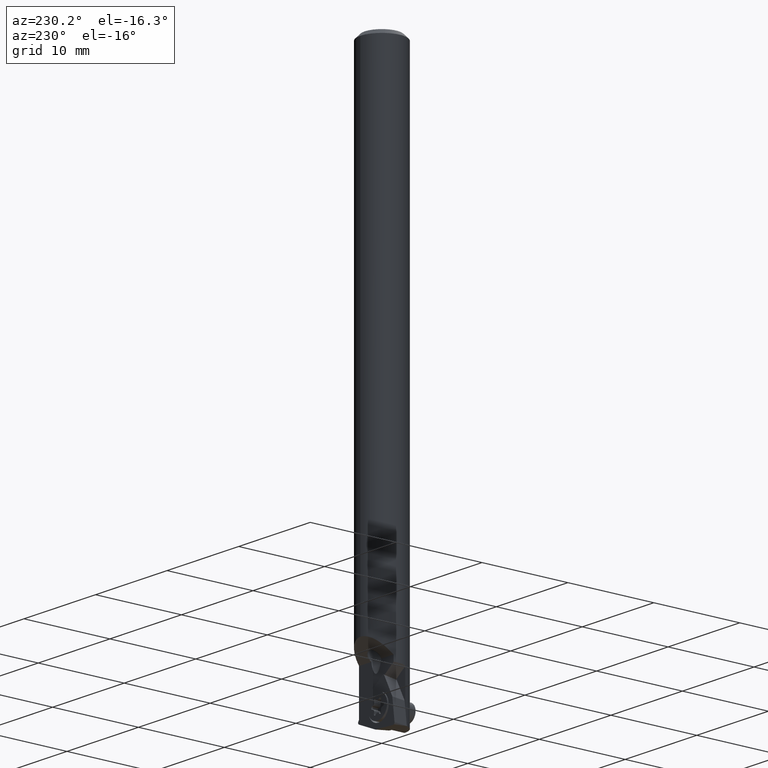
[diagram: clean part render]
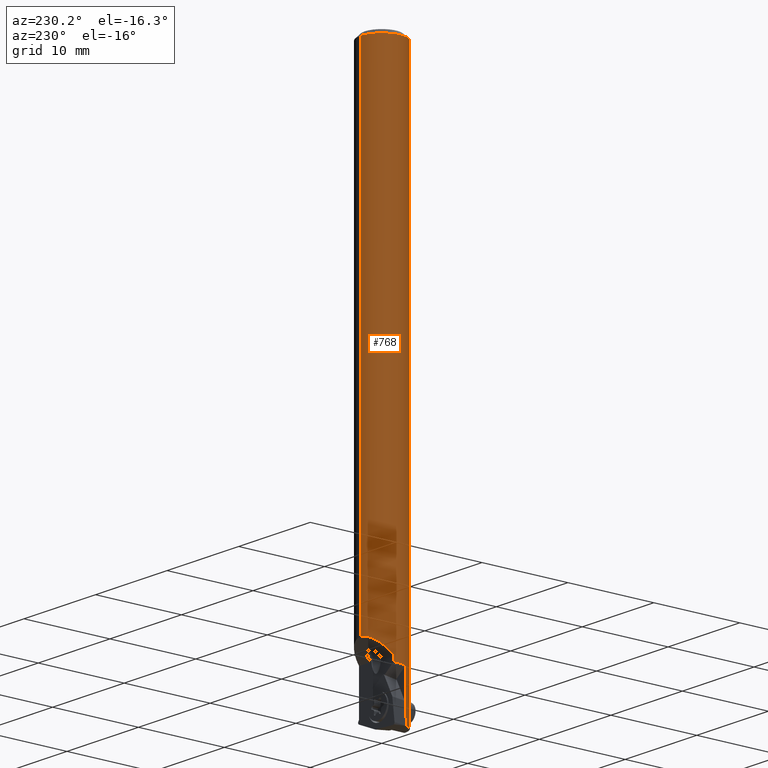
[diagram: same view with one face highlighted and labeled with its STEP entity id]
A machine part, auxiliary view. The second image highlights one B-rep face of the part: STEP entity #768.
In plain terms, the highlighted cylindrical surface (edge-blend (fillet) strip) has radius 2.5 mm, axis along (-0, -0, 1).
Its self-contained STEP definition (entity closure, byte-faithful):
#590=VERTEX_POINT('NONE',#1633);
#630=EDGE_CURVE('NONE',#1076,#1500,#1678,.T.);
#728=EDGE_CURVE('NONE',#844,#1212,#1790,.T.);
#768=ADVANCED_FACE('NONE',(#1833),#1834,.T.);
#844=VERTEX_POINT('NONE',#1918);
#902=EDGE_CURVE('NONE',#1292,#1092,#1983,.T.);
#918=EDGE_CURVE('NONE',#1278,#1168,#2000,.T.);
#1028=EDGE_CURVE('NONE',#1306,#1386,#2122,.T.);
#1074=EDGE_CURVE('NONE',#1212,#1468,#2173,.T.);
#1076=VERTEX_POINT('NONE',#2175);
#1092=VERTEX_POINT('NONE',#2193);
#1094=EDGE_CURVE('NONE',#1300,#1278,#2195,.T.);
#1168=VERTEX_POINT('NONE',#2273);
#1212=VERTEX_POINT('NONE',#2321);
#1214=EDGE_CURVE('NONE',#1076,#1092,#2323,.T.);
#1278=VERTEX_POINT('NONE',#2392);
#1292=VERTEX_POINT('NONE',#2409);
#1300=VERTEX_POINT('NONE',#2418);
#1306=VERTEX_POINT('NONE',#2424);
#1386=VERTEX_POINT('NONE',#2507);
#1400=EDGE_CURVE('NONE',#1168,#1468,#2523,.T.);
#1438=EDGE_CURVE('NONE',#1500,#590,#2566,.T.);
#1468=VERTEX_POINT('NONE',#2602);
#1474=EDGE_CURVE('NONE',#590,#1306,#2609,.T.);
#1500=VERTEX_POINT('NONE',#2639);
#1508=EDGE_CURVE('NONE',#844,#1386,#2647,.T.);
#1554=EDGE_CURVE('NONE',#1300,#1292,#2696,.T.);
#1633=CARTESIAN_POINT('',(0.0,2.5,-56.5054493858207));
#1678=LINE('',#2843,#2844);
#1790=B_SPLINE_CURVE_WITH_KNOTS('',3,(#3021,#3022,#3023,#3024,#3025,#3026),.UNSPECIFIED.,.F.,.F.,(4,2,4),(0.00149023787739436,0.00200699419616477,0.00252375051493518),.UNSPECIFIED.);
#1833=FACE_OUTER_BOUND('',#3100,.T.);
#1834=CYLINDRICAL_SURFACE('',#3101,2.5);
#1918=CARTESIAN_POINT('',(-3.27220160329131E-016,-2.5,-62.0760055999517));
#1983=(B_SPLINE_CURVE(3,(#3312,#3313,#3314,#3315),.UNSPECIFIED.,.F.,.F.)B_SPLINE_CURVE_WITH_KNOTS((4,4),(5.97849265316419,6.30318664075298),.UNSPECIFIED.)RATIONAL_B_SPLINE_CURVE((1.0,0.991233763910967,0.991233763910967,1.0))BOUNDED_CURVE()REPRESENTATION_ITEM('')GEOMETRIC_REPRESENTATION_ITEM()CURVE());
#2000=(B_SPLINE_CURVE(3,(#3346,#3347,#3348,#3349),.UNSPECIFIED.,.F.,.F.)B_SPLINE_CURVE_WITH_KNOTS((4,4),(4.6487735106604,4.71238898038469),.UNSPECIFIED.)RATIONAL_B_SPLINE_CURVE((1.0,0.9996627844334,0.9996627844334,1.0))BOUNDED_CURVE()REPRESENTATION_ITEM('')GEOMETRIC_REPRESENTATION_ITEM()CURVE());
#2122=CIRCLE('',#3541,2.5);
#2173=B_SPLINE_CURVE_WITH_KNOTS('',3,(#3606,#3607,#3608,#3609,#3610,#3611,#3612,#3613,#3614,#3615,#3616,#3617,#3618,#3619,#3620,#3621),.UNSPECIFIED.,.F.,.F.,(4,2,2,2,2,2,2,4),(0.00252375051493518,0.00281955221813985,0.00311535392134451,0.00341115562454917,0.00370695732775383,0.00429856073416319,0.00459436243736786,0.00489016414057254),.UNSPECIFIED.);
#2175=CARTESIAN_POINT('',(-2.41402154091465,0.65,-59.0391181989787));
#2193=CARTESIAN_POINT('',(-2.49949994998999,0.0499999999999999,-59.0603033003565));
#2195=(B_SPLINE_CURVE(3,(#3648,#3649,#3650,#3651),.UNSPECIFIED.,.F.,.F.)B_SPLINE_CURVE_WITH_KNOTS((4,4),(3.44628530760519,4.6487735106604),.UNSPECIFIED.)RATIONAL_B_SPLINE_CURVE((1.0,0.883088335869826,0.883088335869826,1.0))BOUNDED_CURVE()REPRESENTATION_ITEM('')GEOMETRIC_REPRESENTATION_ITEM()CURVE());
#2273=CARTESIAN_POINT('',(-3.06161699786838E-016,-2.5,-64.5097463969191));
#2321=CARTESIAN_POINT('',(-0.944062927726169,-2.31489636668536,-62.1846273666922));
#2323=(B_SPLINE_CURVE(3,(#3863,#3864,#3865,#3866),.UNSPECIFIED.,.F.,.F.)B_SPLINE_CURVE_WITH_KNOTS((4,4),(6.20726864266242,6.4502895119975),.UNSPECIFIED.)RATIONAL_B_SPLINE_CURVE((1.0,0.995084457301074,0.995084457301074,1.0))BOUNDED_CURVE()REPRESENTATION_ITEM('')GEOMETRIC_REPRESENTATION_ITEM()CURVE());
#2392=CARTESIAN_POINT('',(-0.158931426337209,-2.4949430457873,-64.5772087849035));
#2409=CARTESIAN_POINT('',(-2.38484800354236,-0.75,-59.1466997389543));
#2418=CARTESIAN_POINT('',(-2.38484800354236,-0.75,-64.6938641295841));
#2424=CARTESIAN_POINT('',(0.0,2.5,-0.5));
#2507=CARTESIAN_POINT('',(-3.06161699786838E-016,-2.5,-0.5));
#2523=LINE('',#4147,#4148);
#2566=(B_SPLINE_CURVE(3,(#4209,#4210,#4211,#4212),.UNSPECIFIED.,.F.,.F.)B_SPLINE_CURVE_WITH_KNOTS((4,4),(4.97541118329316,6.28318530717959),.UNSPECIFIED.)RATIONAL_B_SPLINE_CURVE((1.0,0.862483595546251,0.862483595546251,1.0))BOUNDED_CURVE()REPRESENTATION_ITEM('')GEOMETRIC_REPRESENTATION_ITEM()CURVE());
#2602=CARTESIAN_POINT('',(1.33825375076837E-014,-2.50000000000002,-63.4634150560234));
#2609=LINE('',#4268,#4269);
#2639=CARTESIAN_POINT('',(-2.41402154091466,0.65,-58.3554493858207));
#2647=LINE('',#4334,#4335);
#2696=LINE('',#4402,#4403);
#2843=CARTESIAN_POINT('',(-2.41402154091466,0.65,1.94423405547652));
#2844=VECTOR('',#4532,1000.0);
#3021=CARTESIAN_POINT('',(-3.27220160329131E-016,-2.5,-62.0760055999517));
#3022=CARTESIAN_POINT('',(-0.149316980898487,-2.5,-61.9902378736268));
#3023=CARTESIAN_POINT('',(-0.329388337417009,-2.48411069103177,-61.9549666738991));
#3024=CARTESIAN_POINT('',(-0.664910760202117,-2.41602903192244,-61.9966741361763));
#3025=CARTESIAN_POINT('',(-0.823325940364259,-2.36413542352355,-62.0720383045224));
#3026=CARTESIAN_POINT('',(-0.944062927726169,-2.31489636668536,-62.1846273666922));
#3100=EDGE_LOOP('',(#4721,#4722,#4723,#4724,#4725,#4726,#4727,#4728,#4729,#4730,#4731,#4732,#4733));
#3101=AXIS2_PLACEMENT_3D('',#4734,#4735,#4736);
#3312=CARTESIAN_POINT('',(-2.38484800354236,-0.75,-59.1466997389543));
#3313=CARTESIAN_POINT('',(-2.46638012436353,-0.490744379246756,-59.0852608790961));
#3314=CARTESIAN_POINT('',(-2.50493542471141,-0.221719375886781,-59.056207376366));
#3315=CARTESIAN_POINT('',(-2.49949994998999,0.0499999999999999,-59.0603033003565));
#3346=CARTESIAN_POINT('',(-0.158931426337209,-2.4949430457873,-64.5772087849035));
#3347=CARTESIAN_POINT('',(-0.106016845392331,-2.49831377997613,-64.5547478778821));
#3348=CARTESIAN_POINT('',(-0.0530218325366414,-2.5,-64.5322528295402));
#3349=CARTESIAN_POINT('',(-3.06161699786838E-016,-2.5,-64.5097463969191));
#3541=AXIS2_PLACEMENT_3D('',#5096,#5097,#5098);
#3606=CARTESIAN_POINT('',(-0.944062927726169,-2.31489636668536,-62.1846273666922));
#3607=CARTESIAN_POINT('',(-1.01317520599774,-2.28671094089012,-62.2490756088178));
#3608=CARTESIAN_POINT('',(-1.07180537067187,-2.25909694730203,-62.3271833653326));
#3609=CARTESIAN_POINT('',(-1.15739554525117,-2.21646595321091,-62.4990783550328));
#3610=CARTESIAN_POINT('',(-1.18550327398573,-2.20106679900823,-62.595845257976));
#3611=CARTESIAN_POINT('',(-1.20418366454988,-2.19090272909557,-62.791521161951));
#3612=CARTESIAN_POINT('',(-1.19498207731937,-2.1961165170081,-62.8929007884821));
#3613=CARTESIAN_POINT('',(-1.14164537987659,-2.22431017351375,-63.0816371592975));
#3614=CARTESIAN_POINT('',(-1.09795094016938,-2.24688601217437,-63.1697022017131));
#3615=CARTESIAN_POINT('',(-0.925578897292923,-2.32578498141608,-63.4015732170537));
#3616=CARTESIAN_POINT('',(-0.759476604985026,-2.38981188897067,-63.5095964631119));
#3617=CARTESIAN_POINT('',(-0.474744014871048,-2.45644448642553,-63.5719707290482));
#3618=CARTESIAN_POINT('',(-0.376556423693461,-2.47343729429334,-63.5755053021565));
#3619=CARTESIAN_POINT('',(-0.180940865886149,-2.49538517910128,-63.5458991417772));
#3620=CARTESIAN_POINT('',(-0.0860293536174167,-2.5,-63.5128303469874));
#3621=CARTESIAN_POINT('',(1.33825375076837E-014,-2.50000000000002,-63.4634150560234));
#3648=CARTESIAN_POINT('',(-2.38484800354236,-0.75,-64.6938641295841));
#3649=CARTESIAN_POINT('',(-2.06456926444049,-1.76842148203222,-64.6770790321163));
#3650=CARTESIAN_POINT('',(-1.2243677101182,-2.42707323667938,-64.633045934504));
#3651=CARTESIAN_POINT('',(-0.158931426337209,-2.4949430457873,-64.5772087849035));
#3863=CARTESIAN_POINT('',(-2.41402154091465,0.65,-59.0391181989787));
#3864=CARTESIAN_POINT('',(-2.46680605061504,0.453964702394862,-59.0273091697939));
#3865=CARTESIAN_POINT('',(-2.49543960308997,0.252976737471309,-59.034405753815));
#3866=CARTESIAN_POINT('',(-2.49949994998999,0.0499999999999999,-59.0603033003565));
#4147=CARTESIAN_POINT('',(-3.06161699786838E-016,-2.5,1.94423405547652));
#4148=VECTOR('',#5509,1000.0);
#4209=CARTESIAN_POINT('',(-2.41402154091466,0.65,-58.3554493858207));
#4210=CARTESIAN_POINT('',(-2.10840833542989,1.78501055573573,-57.220438830085));
#4211=CARTESIAN_POINT('',(-1.17543540571067,2.5,-56.5054493858207));
#4212=CARTESIAN_POINT('',(0.0,2.5,-56.5054493858207));
#4268=CARTESIAN_POINT('',(0.0,2.5,1.94423405547652));
#4269=VECTOR('',#5647,1000.0);
#4334=CARTESIAN_POINT('',(-3.06161699786838E-016,-2.5,1.94423405547652));
#4335=VECTOR('',#5691,1000.0);
#4402=CARTESIAN_POINT('',(-2.38484800354236,-0.75,1.94423405547652));
#4403=VECTOR('',#5742,1000.0);
#4532=DIRECTION('',(0.0,-0.0,1.0));
#4721=ORIENTED_EDGE('',*,*,#918,.T.);
#4722=ORIENTED_EDGE('',*,*,#1400,.T.);
#4723=ORIENTED_EDGE('',*,*,#1074,.F.);
#4724=ORIENTED_EDGE('',*,*,#728,.F.);
#4725=ORIENTED_EDGE('',*,*,#1508,.T.);
#4726=ORIENTED_EDGE('',*,*,#1028,.F.);
#4727=ORIENTED_EDGE('',*,*,#1474,.F.);
#4728=ORIENTED_EDGE('',*,*,#1438,.F.);
#4729=ORIENTED_EDGE('',*,*,#630,.F.);
#4730=ORIENTED_EDGE('',*,*,#1214,.T.);
#4731=ORIENTED_EDGE('',*,*,#902,.F.);
#4732=ORIENTED_EDGE('',*,*,#1554,.F.);
#4733=ORIENTED_EDGE('',*,*,#1094,.T.);
#4734=CARTESIAN_POINT('',(0.0,0.0,1.94423405547652));
#4735=DIRECTION('',(-0.0,-0.0,1.0));
#4736=DIRECTION('',(0.0,1.0,0.0));
#5096=CARTESIAN_POINT('',(0.0,0.0,-0.5));
#5097=DIRECTION('',(0.0,-0.0,1.0));
#5098=DIRECTION('',(0.0,1.0,0.0));
#5509=DIRECTION('',(0.0,-0.0,1.0));
#5647=DIRECTION('',(0.0,-0.0,1.0));
#5691=DIRECTION('',(0.0,-0.0,1.0));
#5742=DIRECTION('',(0.0,-0.0,1.0));